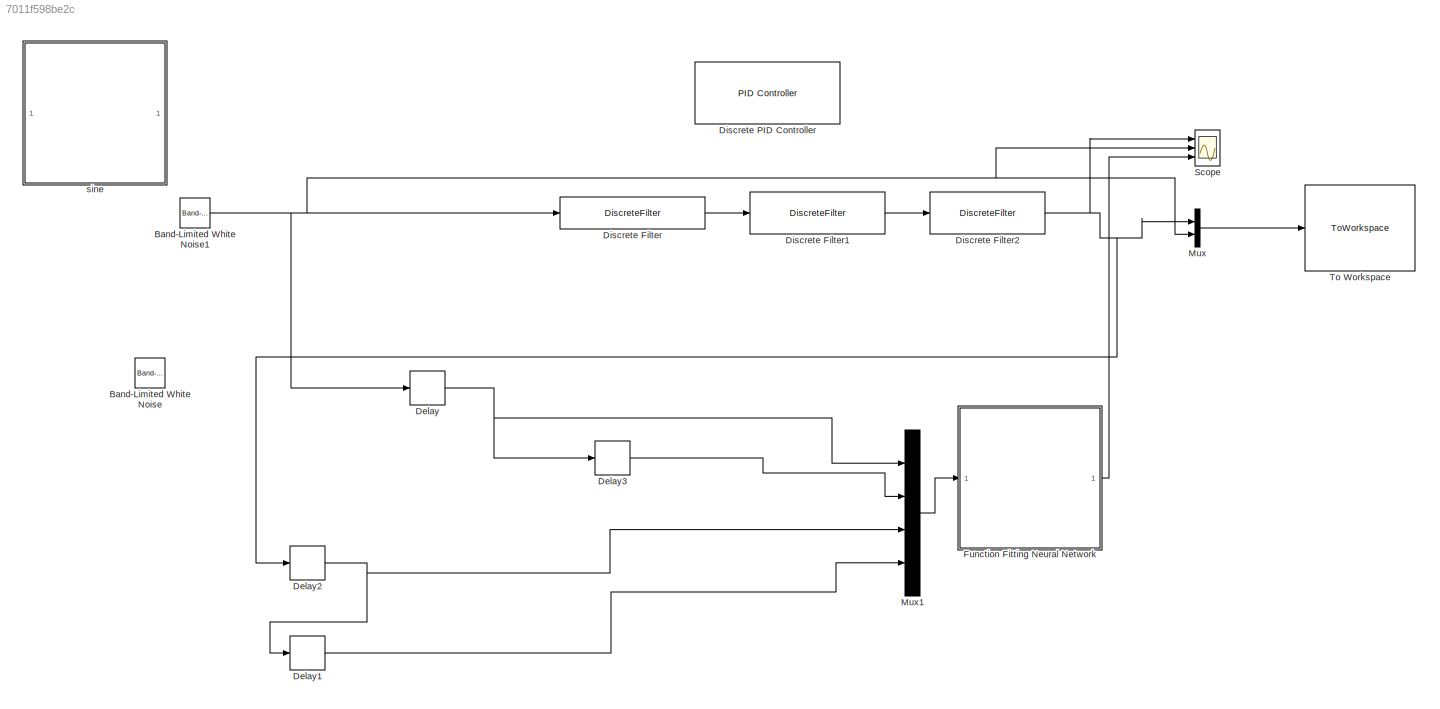
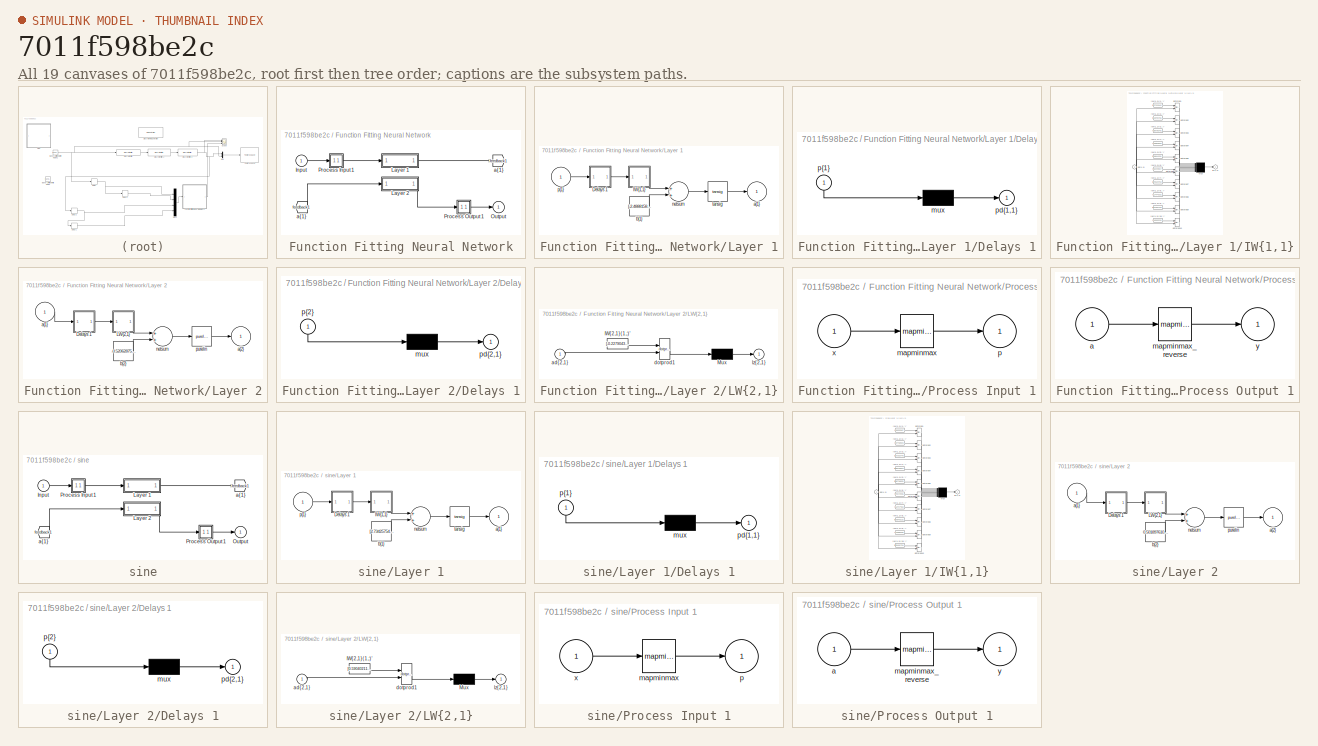
[diagram: thumbnail index - all 19 canvases of the model, root first then tree order]
MODEL slx_7011f598be2c
KIND model
CONFIG AbsTol = auto
CONFIG EnableMultiTasking = off
CONFIG FixedStep = 0.01
CONFIG MaxStep = auto
CONFIG MinStep = auto
CONFIG RelTol = 1e-3
CONFIG SampleTimeConstraint = Unconstrained
CONFIG Solver = FixedStepDiscrete
CONFIG SolverName = FixedStepDiscrete
CONFIG StartTime = 0.0
CONFIG StopTime = 20.0
BLOCK [Reference] Band-Limited White Noise  REF=simulink/Sources/Band-Limited
White Noise
  Ports = [0, 1]
  SourceBlock = simulink/Sources/Band-Limited\nWhite Noise
  SourceType = Band-Limited White Noise.
BLOCK [Reference] Band-Limited White Noise1  REF=simulink/Sources/Band-Limited
White Noise
  Ports = [0, 1]
  SourceBlock = simulink/Sources/Band-Limited\nWhite Noise
  SourceType = Band-Limited White Noise.
BLOCK [Delay] Delay
  DelayLength = 1
  InitialCondition = 0
  InputPortMap = u0
  Ports = [1, 1]
BLOCK [Delay] Delay1
  DelayLength = 1
  InitialCondition = 0
  InputPortMap = u0
  Ports = [1, 1]
BLOCK [Delay] Delay2
  DelayLength = 1
  InitialCondition = 0
  InputPortMap = u0
  Ports = [1, 1]
BLOCK [Delay] Delay3
  DelayLength = 1
  InitialCondition = 0
  InputPortMap = u0
  Ports = [1, 1]
BLOCK [DiscreteFilter] Discrete Filter
  InputPortMap = u0
  Numerator = [0 1]
  Ports = [1, 1]
BLOCK [DiscreteFilter] Discrete Filter1
  Denominator = [1 -0.1]
  InputPortMap = u0
  Ports = [1, 1]
BLOCK [DiscreteFilter] Discrete Filter2
  Denominator = [1 0.00001]
  InputPortMap = u0
  Ports = [1, 1]
BLOCK [Reference] Discrete PID Controller  REF=simulink/Continuous/PID Controller
  Ports = [1, 1]
  SourceBlock = simulink/Continuous/PID Controller
  SourceType = PID 1dof
BLOCK [SubSystem] Function Fitting Neural Network
  Ports = [1, 1]
  RequestExecContextInheritance = off
  Variant = off
BLOCK [From] Function Fitting Neural Network/ a{1} 
  GotoTag = feedback1
BLOCK [Inport] Function Fitting Neural Network/Input
  IconDisplay = Port number
  PortDimensions = 4
BLOCK [SubSystem] Function Fitting Neural Network/Layer 1
  Ports = [1, 1]
  RequestExecContextInheritance = off
  Variant = off
BLOCK [SubSystem] Function Fitting Neural Network/Layer 1/Delays 1
  Ports = [1, 1]
  RequestExecContextInheritance = off
  Variant = off
BLOCK [Mux] Function Fitting Neural Network/Layer 1/Delays 1/mux
  Inputs = 1
  Ports = [1, 1]
BLOCK [Outport] Function Fitting Neural Network/Layer 1/Delays 1/pd{1,1}
  IconDisplay = Port number
BLOCK [Inport] Function Fitting Neural Network/Layer 1/Delays 1/p{1}
  IconDisplay = Port number
  PortDimensions = 4
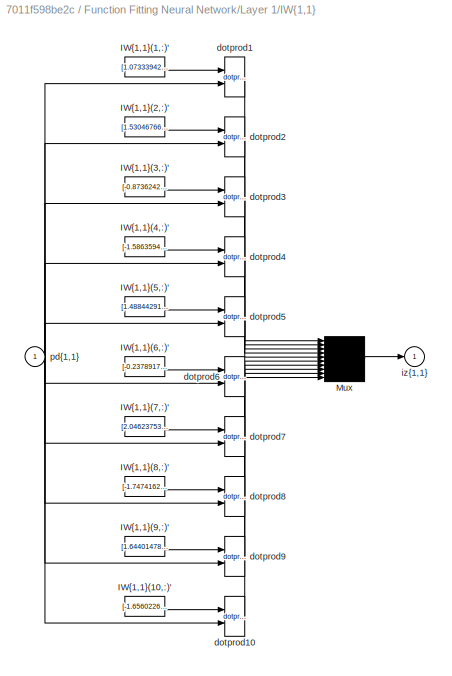
BLOCK [SubSystem] Function Fitting Neural Network/Layer 1/IW{1,1}
  Ports = [1, 1]
  RequestExecContextInheritance = off
  Variant = off
BLOCK [Constant] Function Fitting Neural Network/Layer 1/IW{1,1}/IW{1,1}(1,:)'
  Value = [1.0733394279049522;0.080483204559086807;0.70372800851343353;2.2007595652914427]
BLOCK [Constant] Function Fitting Neural Network/Layer 1/IW{1,1}/IW{1,1}(10,:)'
  Value = [-1.6560226048576614;1.5742817597632952;-0.77707874374613428;0.61791739003595492]
BLOCK [Constant] Function Fitting Neural Network/Layer 1/IW{1,1}/IW{1,1}(2,:)'
  Value = [1.5304676687697931;-0.66165941295258024;-1.4151208355066609;1.212780082020831]
BLOCK [Constant] Function Fitting Neural Network/Layer 1/IW{1,1}/IW{1,1}(3,:)'
  Value = [-0.87362424646233905;-0.89925307556499956;1.6846618781529801;-0.99538022113019031]
BLOCK [Constant] Function Fitting Neural Network/Layer 1/IW{1,1}/IW{1,1}(4,:)'
  Value = [-1.5863594211629433;1.6954275323282726;0.90219839763559917;0.50004688638942929]
BLOCK [Constant] Function Fitting Neural Network/Layer 1/IW{1,1}/IW{1,1}(5,:)'
  Value = [1.488442911367744;0.96294364407009991;-1.1473839841209872;-1.2681447309557685]
BLOCK [Constant] Function Fitting Neural Network/Layer 1/IW{1,1}/IW{1,1}(6,:)'
  Value = [-0.23789174450624553;-1.0689779137943161;-2.025882088108923;0.93624553925018039]
BLOCK [Constant] Function Fitting Neural Network/Layer 1/IW{1,1}/IW{1,1}(7,:)'
  Value = [2.0462375302687561;0.66556541907826106;-1.004463186302553;-0.75391050690540784]
BLOCK [Constant] Function Fitting Neural Network/Layer 1/IW{1,1}/IW{1,1}(8,:)'
  Value = [-1.7474162192988703;-0.93052868639931252;-0.85935805898040951;1.4379681982678678]
BLOCK [Constant] Function Fitting Neural Network/Layer 1/IW{1,1}/IW{1,1}(9,:)'
  Value = [1.6440147804756549;0.66585145069006868;0.25553159333592779;-1.7340871480945605]
BLOCK [Mux] Function Fitting Neural Network/Layer 1/IW{1,1}/Mux
  Inputs = 10
  Ports = [10, 1]
BLOCK [Reference] Function Fitting Neural Network/Layer 1/IW{1,1}/dotprod1  REF=neural/Weight Functions/dotprod
  Ports = [2, 1]
  SourceBlock = neural/Weight Functions/dotprod
  SourceType = DOTPROD
BLOCK [Reference] Function Fitting Neural Network/Layer 1/IW{1,1}/dotprod10  REF=neural/Weight Functions/dotprod
  Ports = [2, 1]
  SourceBlock = neural/Weight Functions/dotprod
  SourceType = DOTPROD
BLOCK [Reference] Function Fitting Neural Network/Layer 1/IW{1,1}/dotprod2  REF=neural/Weight Functions/dotprod
  Ports = [2, 1]
  SourceBlock = neural/Weight Functions/dotprod
  SourceType = DOTPROD
BLOCK [Reference] Function Fitting Neural Network/Layer 1/IW{1,1}/dotprod3  REF=neural/Weight Functions/dotprod
  Ports = [2, 1]
  SourceBlock = neural/Weight Functions/dotprod
  SourceType = DOTPROD
BLOCK [Reference] Function Fitting Neural Network/Layer 1/IW{1,1}/dotprod4  REF=neural/Weight Functions/dotprod
  Ports = [2, 1]
  SourceBlock = neural/Weight Functions/dotprod
  SourceType = DOTPROD
BLOCK [Reference] Function Fitting Neural Network/Layer 1/IW{1,1}/dotprod5  REF=neural/Weight Functions/dotprod
  Ports = [2, 1]
  SourceBlock = neural/Weight Functions/dotprod
  SourceType = DOTPROD
BLOCK [Reference] Function Fitting Neural Network/Layer 1/IW{1,1}/dotprod6  REF=neural/Weight Functions/dotprod
  Ports = [2, 1]
  SourceBlock = neural/Weight Functions/dotprod
  SourceType = DOTPROD
BLOCK [Reference] Function Fitting Neural Network/Layer 1/IW{1,1}/dotprod7  REF=neural/Weight Functions/dotprod
  Ports = [2, 1]
  SourceBlock = neural/Weight Functions/dotprod
  SourceType = DOTPROD
BLOCK [Reference] Function Fitting Neural Network/Layer 1/IW{1,1}/dotprod8  REF=neural/Weight Functions/dotprod
  Ports = [2, 1]
  SourceBlock = neural/Weight Functions/dotprod
  SourceType = DOTPROD
BLOCK [Reference] Function Fitting Neural Network/Layer 1/IW{1,1}/dotprod9  REF=neural/Weight Functions/dotprod
  Ports = [2, 1]
  SourceBlock = neural/Weight Functions/dotprod
  SourceType = DOTPROD
BLOCK [Outport] Function Fitting Neural Network/Layer 1/IW{1,1}/iz{1,1}
  IconDisplay = Port number
BLOCK [Inport] Function Fitting Neural Network/Layer 1/IW{1,1}/pd{1,1}
  IconDisplay = Port number
  PortDimensions = 4
BLOCK [Outport] Function Fitting Neural Network/Layer 1/a{1}
  IconDisplay = Port number
  InitialOutput = [0;0;0;0;0;0;0;0;0;0]
BLOCK [Constant] Function Fitting Neural Network/Layer 1/b{1}
  Value = [-2.4888158960028508;-1.9154067560485493;1.3495312144325204;0.71463140624823618;-0.49125605602403077;-0.37868338325905737;0.82478329385424887;-1.2318447901144673;1.9229658357828865;-2.4782288721971226]
BLOCK [Sum] Function Fitting Neural Network/Layer 1/netsum
  Inputs = 2
  Ports = [2, 1]
BLOCK [Inport] Function Fitting Neural Network/Layer 1/p{1}
  IconDisplay = Port number
  PortDimensions = 4
BLOCK [Reference] Function Fitting Neural Network/Layer 1/tansig  REF=neural/Transfer Functions/tansig
  Ports = [1, 1]
  SourceBlock = neural/Transfer Functions/tansig
  SourceType = TANSIG
BLOCK [SubSystem] Function Fitting Neural Network/Layer 2
  Ports = [1, 1]
  RequestExecContextInheritance = off
  Variant = off
BLOCK [SubSystem] Function Fitting Neural Network/Layer 2/Delays 1
  Ports = [1, 1]
  RequestExecContextInheritance = off
  Variant = off
BLOCK [Mux] Function Fitting Neural Network/Layer 2/Delays 1/mux
  Inputs = 1
  Ports = [1, 1]
BLOCK [Outport] Function Fitting Neural Network/Layer 2/Delays 1/pd{2,1}
  IconDisplay = Port number
BLOCK [Inport] Function Fitting Neural Network/Layer 2/Delays 1/p{2}
  IconDisplay = Port number
  PortDimensions = 10
BLOCK [SubSystem] Function Fitting Neural Network/Layer 2/LW{2,1}
  Ports = [1, 1]
  RequestExecContextInheritance = off
  Variant = off
BLOCK [Constant] Function Fitting Neural Network/Layer 2/LW{2,1}/IW{2,1}(1,:)'
  Value = [-0.22790435773785009;0.033217494865633371;-0.46699797290102768;0.44561839527465219;0.62445625558973439;0.63800234974212866;-0.0068861296847932641;-0.62472545283176062;-0.081327613051739009;-0.27389660419790118]
BLOCK [Mux] Function Fitting Neural Network/Layer 2/LW{2,1}/Mux
  Inputs = 1
  Ports = [1, 1]
BLOCK [Inport] Function Fitting Neural Network/Layer 2/LW{2,1}/ad{2,1}
  IconDisplay = Port number
  PortDimensions = 10
BLOCK [Reference] Function Fitting Neural Network/Layer 2/LW{2,1}/dotprod1  REF=neural/Weight Functions/dotprod
  Ports = [2, 1]
  SourceBlock = neural/Weight Functions/dotprod
  SourceType = DOTPROD
BLOCK [Outport] Function Fitting Neural Network/Layer 2/LW{2,1}/lz{2,1}
  IconDisplay = Port number
BLOCK [Inport] Function Fitting Neural Network/Layer 2/a{1} 
  IconDisplay = Port number
  PortDimensions = 10
BLOCK [Outport] Function Fitting Neural Network/Layer 2/a{2}
  IconDisplay = Port number
  InitialOutput = 0
BLOCK [Constant] Function Fitting Neural Network/Layer 2/b{2}
  Value = -0.52062875370333961
BLOCK [Sum] Function Fitting Neural Network/Layer 2/netsum
  Inputs = 2
  Ports = [2, 1]
BLOCK [Reference] Function Fitting Neural Network/Layer 2/purelin  REF=neural/Transfer Functions/purelin
  Ports = [1, 1]
  SourceBlock = neural/Transfer Functions/purelin
  SourceType = PURELIN
BLOCK [Outport] Function Fitting Neural Network/Output
  IconDisplay = Port number
  InitialOutput = 0
BLOCK [SubSystem] Function Fitting Neural Network/Process Input 1
  Ports = [1, 1]
  RequestExecContextInheritance = off
  Variant = off
BLOCK [Reference] Function Fitting Neural Network/Process Input 1/mapminmax  REF=neural/Processing Functions/mapminmax
  Ports = [1, 1]
  SourceBlock = neural/Processing Functions/mapminmax
  SourceType = MAPMINMAX Preprocess
BLOCK [Outport] Function Fitting Neural Network/Process Input 1/p
  IconDisplay = Port number
  PortDimensions = 4
BLOCK [Inport] Function Fitting Neural Network/Process Input 1/x
  IconDisplay = Port number
  PortDimensions = 4
BLOCK [SubSystem] Function Fitting Neural Network/Process Output 1
  Ports = [1, 1]
  RequestExecContextInheritance = off
  Variant = off
BLOCK [Inport] Function Fitting Neural Network/Process Output 1/a
  IconDisplay = Port number
  PortDimensions = 1
BLOCK [Reference] Function Fitting Neural Network/Process Output 1/mapminmax_reverse  REF=neural/Processing Functions/mapminmax_reverse
  Ports = [1, 1]
  SourceBlock = neural/Processing Functions/mapminmax_reverse
  SourceType = MAPMINMAX Reverse Process
BLOCK [Outport] Function Fitting Neural Network/Process Output 1/y
  IconDisplay = Port number
  PortDimensions = 1
BLOCK [Goto] Function Fitting Neural Network/a{1}
  GotoTag = feedback1
BLOCK [Mux] Mux
  DisplayOption = bar
  Inputs = 2
  Ports = [2, 1]
BLOCK [Mux] Mux1
  DisplayOption = bar
  Ports = [4, 1]
BLOCK [Scope] Scope
  NumInputPorts = 3
  Ports = [3]
  ScopeSpecificationString = Simulink.scopes.TimeScopeBlockCfg('CurrentConfiguration', extmgr.ConfigurationSet(extmgr.Configuration('Core','General UI',true),extmgr.Configuration('Core','Source UI',true),extmgr.Configuration('Sources','WiredSimulink',true),extmgr.Configuration('Visuals','Time Domain',true,'SerializedDisplays',{struct('MinYLimReal','-0.12502','MaxYLimReal','1.125','YLabelReal','','MinYLimMag','0.00000','MaxYLi...<+1442ch>
BLOCK [ToWorkspace] To Workspace
  FixptAsFi = on
  MaxDataPoints = inf
  Ports = [1]
  SampleTime = -1
  Save2DSignal = 3-D array (concatenate along third dimension)
  SaveFormat = Timeseries
  VariableName = simout
BLOCK [SubSystem] sine
  Ports = [1, 1]
  RequestExecContextInheritance = off
  Variant = off
BLOCK [From] sine/ a{1} 
  GotoTag = feedback1
BLOCK [Inport] sine/Input
  IconDisplay = Port number
  PortDimensions = 4
BLOCK [SubSystem] sine/Layer 1
  Ports = [1, 1]
  RequestExecContextInheritance = off
  Variant = off
BLOCK [SubSystem] sine/Layer 1/Delays 1
  Ports = [1, 1]
  RequestExecContextInheritance = off
  Variant = off
BLOCK [Mux] sine/Layer 1/Delays 1/mux
  Inputs = 1
  Ports = [1, 1]
BLOCK [Outport] sine/Layer 1/Delays 1/pd{1,1}
  IconDisplay = Port number
BLOCK [Inport] sine/Layer 1/Delays 1/p{1}
  IconDisplay = Port number
  PortDimensions = 4
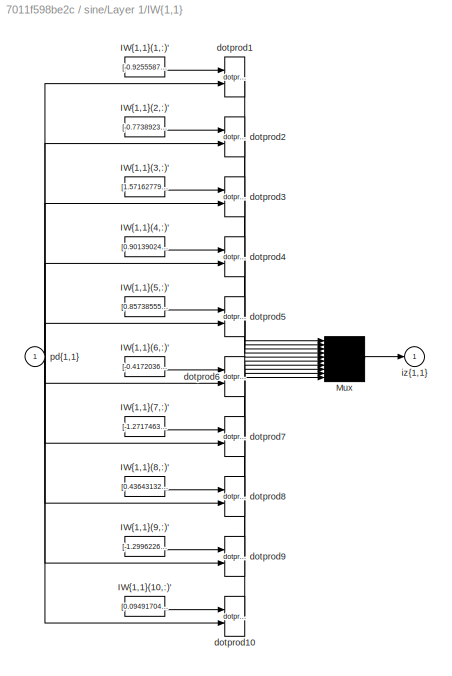
BLOCK [SubSystem] sine/Layer 1/IW{1,1}
  Ports = [1, 1]
  RequestExecContextInheritance = off
  Variant = off
BLOCK [Constant] sine/Layer 1/IW{1,1}/IW{1,1}(1,:)'
  Value = [-0.92555877796203068;1.2591955642911887;-1.4206408491782627;0.64244570417309599]
BLOCK [Constant] sine/Layer 1/IW{1,1}/IW{1,1}(10,:)'
  Value = [0.094917044915356519;-1.743303939335529;0.36657761054354943;-1.7969767271125581]
BLOCK [Constant] sine/Layer 1/IW{1,1}/IW{1,1}(2,:)'
  Value = [-0.77389237212291939;0.3876799958566654;1.9460540208069979;0.69614346212261824]
BLOCK [Constant] sine/Layer 1/IW{1,1}/IW{1,1}(3,:)'
  Value = [1.5716277990051724;-0.1480050491864365;-1.6017320932204655;0.68262701661838632]
BLOCK [Constant] sine/Layer 1/IW{1,1}/IW{1,1}(4,:)'
  Value = [0.90139024435053183;-0.15866954916964282;-2.1688575377950059;0.012226068432835569]
BLOCK [Constant] sine/Layer 1/IW{1,1}/IW{1,1}(5,:)'
  Value = [0.85738555032402664;-1.1262541429520094;0.89955555679405985;-1.5497658554242095]
BLOCK [Constant] sine/Layer 1/IW{1,1}/IW{1,1}(6,:)'
  Value = [-0.41720365078627802;-0.0035162916777713854;-1.6936554383740667;1.4298931332135136]
BLOCK [Constant] sine/Layer 1/IW{1,1}/IW{1,1}(7,:)'
  Value = [-1.2717463446100199;-1.3731142206884754;1.2613522357612257;-0.7835385736588979]
BLOCK [Constant] sine/Layer 1/IW{1,1}/IW{1,1}(8,:)'
  Value = [0.43643132813578284;0.50858361564501131;-2.2821162466922309;0.73169570172439891]
BLOCK [Constant] sine/Layer 1/IW{1,1}/IW{1,1}(9,:)'
  Value = [-1.2996226832565601;1.3809745831668609;-0.90014742368613077;0.97661170506052897]
BLOCK [Mux] sine/Layer 1/IW{1,1}/Mux
  Inputs = 10
  Ports = [10, 1]
BLOCK [Reference] sine/Layer 1/IW{1,1}/dotprod1  REF=neural/Weight Functions/dotprod
  Ports = [2, 1]
  SourceBlock = neural/Weight Functions/dotprod
  SourceType = DOTPROD
BLOCK [Reference] sine/Layer 1/IW{1,1}/dotprod10  REF=neural/Weight Functions/dotprod
  Ports = [2, 1]
  SourceBlock = neural/Weight Functions/dotprod
  SourceType = DOTPROD
BLOCK [Reference] sine/Layer 1/IW{1,1}/dotprod2  REF=neural/Weight Functions/dotprod
  Ports = [2, 1]
  SourceBlock = neural/Weight Functions/dotprod
  SourceType = DOTPROD
BLOCK [Reference] sine/Layer 1/IW{1,1}/dotprod3  REF=neural/Weight Functions/dotprod
  Ports = [2, 1]
  SourceBlock = neural/Weight Functions/dotprod
  SourceType = DOTPROD
BLOCK [Reference] sine/Layer 1/IW{1,1}/dotprod4  REF=neural/Weight Functions/dotprod
  Ports = [2, 1]
  SourceBlock = neural/Weight Functions/dotprod
  SourceType = DOTPROD
BLOCK [Reference] sine/Layer 1/IW{1,1}/dotprod5  REF=neural/Weight Functions/dotprod
  Ports = [2, 1]
  SourceBlock = neural/Weight Functions/dotprod
  SourceType = DOTPROD
BLOCK [Reference] sine/Layer 1/IW{1,1}/dotprod6  REF=neural/Weight Functions/dotprod
  Ports = [2, 1]
  SourceBlock = neural/Weight Functions/dotprod
  SourceType = DOTPROD
BLOCK [Reference] sine/Layer 1/IW{1,1}/dotprod7  REF=neural/Weight Functions/dotprod
  Ports = [2, 1]
  SourceBlock = neural/Weight Functions/dotprod
  SourceType = DOTPROD
BLOCK [Reference] sine/Layer 1/IW{1,1}/dotprod8  REF=neural/Weight Functions/dotprod
  Ports = [2, 1]
  SourceBlock = neural/Weight Functions/dotprod
  SourceType = DOTPROD
BLOCK [Reference] sine/Layer 1/IW{1,1}/dotprod9  REF=neural/Weight Functions/dotprod
  Ports = [2, 1]
  SourceBlock = neural/Weight Functions/dotprod
  SourceType = DOTPROD
BLOCK [Outport] sine/Layer 1/IW{1,1}/iz{1,1}
  IconDisplay = Port number
BLOCK [Inport] sine/Layer 1/IW{1,1}/pd{1,1}
  IconDisplay = Port number
  PortDimensions = 4
BLOCK [Outport] sine/Layer 1/a{1}
  IconDisplay = Port number
  InitialOutput = [0;0;0;0;0;0;0;0;0;0]
BLOCK [Constant] sine/Layer 1/b{1}
  Value = [2.7342575446728348;2.0213489200155088;-0.7755357101585415;-0.57859684071428763;-0.6169287061060994;-0.58478797419731743;-0.58853316786790466;1.4081646548276281;-2.1344725018050585;2.3544791698992058]
BLOCK [Sum] sine/Layer 1/netsum
  Inputs = 2
  Ports = [2, 1]
BLOCK [Inport] sine/Layer 1/p{1}
  IconDisplay = Port number
  PortDimensions = 4
BLOCK [Reference] sine/Layer 1/tansig  REF=neural/Transfer Functions/tansig
  Ports = [1, 1]
  SourceBlock = neural/Transfer Functions/tansig
  SourceType = TANSIG
BLOCK [SubSystem] sine/Layer 2
  Ports = [1, 1]
  RequestExecContextInheritance = off
  Variant = off
BLOCK [SubSystem] sine/Layer 2/Delays 1
  Ports = [1, 1]
  RequestExecContextInheritance = off
  Variant = off
BLOCK [Mux] sine/Layer 2/Delays 1/mux
  Inputs = 1
  Ports = [1, 1]
BLOCK [Outport] sine/Layer 2/Delays 1/pd{2,1}
  IconDisplay = Port number
BLOCK [Inport] sine/Layer 2/Delays 1/p{2}
  IconDisplay = Port number
  PortDimensions = 10
BLOCK [SubSystem] sine/Layer 2/LW{2,1}
  Ports = [1, 1]
  RequestExecContextInheritance = off
  Variant = off
BLOCK [Constant] sine/Layer 2/LW{2,1}/IW{2,1}(1,:)'
  Value = [0.5904021109951535;-0.043979407767605318;1.3040322158437856;0.26961898448659471;-0.48425915308012007;-1.0132622296367995;-0.021109842351971421;-0.45848587674779184;0.47187835709185111;-0.00079895893400050758]
BLOCK [Mux] sine/Layer 2/LW{2,1}/Mux
  Inputs = 1
  Ports = [1, 1]
BLOCK [Inport] sine/Layer 2/LW{2,1}/ad{2,1}
  IconDisplay = Port number
  PortDimensions = 10
BLOCK [Reference] sine/Layer 2/LW{2,1}/dotprod1  REF=neural/Weight Functions/dotprod
  Ports = [2, 1]
  SourceBlock = neural/Weight Functions/dotprod
  SourceType = DOTPROD
BLOCK [Outport] sine/Layer 2/LW{2,1}/lz{2,1}
  IconDisplay = Port number
BLOCK [Inport] sine/Layer 2/a{1} 
  IconDisplay = Port number
  PortDimensions = 10
BLOCK [Outport] sine/Layer 2/a{2}
  IconDisplay = Port number
  InitialOutput = 0
BLOCK [Constant] sine/Layer 2/b{2}
  Value = 0.50189761034947555
BLOCK [Sum] sine/Layer 2/netsum
  Inputs = 2
  Ports = [2, 1]
BLOCK [Reference] sine/Layer 2/purelin  REF=neural/Transfer Functions/purelin
  Ports = [1, 1]
  SourceBlock = neural/Transfer Functions/purelin
  SourceType = PURELIN
BLOCK [Outport] sine/Output
  IconDisplay = Port number
  InitialOutput = 0
BLOCK [SubSystem] sine/Process Input 1
  Ports = [1, 1]
  RequestExecContextInheritance = off
  Variant = off
BLOCK [Reference] sine/Process Input 1/mapminmax  REF=neural/Processing Functions/mapminmax
  Ports = [1, 1]
  SourceBlock = neural/Processing Functions/mapminmax
  SourceType = MAPMINMAX Preprocess
BLOCK [Outport] sine/Process Input 1/p
  IconDisplay = Port number
  PortDimensions = 4
BLOCK [Inport] sine/Process Input 1/x
  IconDisplay = Port number
  PortDimensions = 4
BLOCK [SubSystem] sine/Process Output 1
  Ports = [1, 1]
  RequestExecContextInheritance = off
  Variant = off
BLOCK [Inport] sine/Process Output 1/a
  IconDisplay = Port number
  PortDimensions = 1
BLOCK [Reference] sine/Process Output 1/mapminmax_reverse  REF=neural/Processing Functions/mapminmax_reverse
  Ports = [1, 1]
  SourceBlock = neural/Processing Functions/mapminmax_reverse
  SourceType = MAPMINMAX Reverse Process
BLOCK [Outport] sine/Process Output 1/y
  IconDisplay = Port number
  PortDimensions = 1
BLOCK [Goto] sine/a{1}
  GotoTag = feedback1
NET Band-Limited White Noise1:1 -> Delay:1, Discrete Filter:1, Mux:2, Scope:2
LINE Delay1:1 -> Mux1:4
NET Delay2:1 -> Delay1:1, Mux1:3
LINE Delay3:1 -> Mux1:2
NET Delay:1 -> Delay3:1, Mux1:1
LINE Discrete Filter1:1 -> Discrete Filter2:1
NET Discrete Filter2:1 -> Delay2:1, Mux:1, Scope:1
LINE Discrete Filter:1 -> Discrete Filter1:1
LINE Function Fitting Neural Network/ a{1} :1 -> Function Fitting Neural Network/Layer 2:1
LINE Function Fitting Neural Network/Input:1 -> Function Fitting Neural Network/Process Input 1:1
LINE Function Fitting Neural Network/Layer 1/Delays 1/mux:1 -> Function Fitting Neural Network/Layer 1/Delays 1/pd{1,1}:1
LINE Function Fitting Neural Network/Layer 1/Delays 1/p{1}:1 -> Function Fitting Neural Network/Layer 1/Delays 1/mux:1
LINE Function Fitting Neural Network/Layer 1/Delays 1:1 -> Function Fitting Neural Network/Layer 1/IW{1,1}:1
LINE Function Fitting Neural Network/Layer 1/IW{1,1}/IW{1,1}(1,:)':1 -> Function Fitting Neural Network/Layer 1/IW{1,1}/dotprod1:1
LINE Function Fitting Neural Network/Layer 1/IW{1,1}/IW{1,1}(10,:)':1 -> Function Fitting Neural Network/Layer 1/IW{1,1}/dotprod10:1
LINE Function Fitting Neural Network/Layer 1/IW{1,1}/IW{1,1}(2,:)':1 -> Function Fitting Neural Network/Layer 1/IW{1,1}/dotprod2:1
LINE Function Fitting Neural Network/Layer 1/IW{1,1}/IW{1,1}(3,:)':1 -> Function Fitting Neural Network/Layer 1/IW{1,1}/dotprod3:1
LINE Function Fitting Neural Network/Layer 1/IW{1,1}/IW{1,1}(4,:)':1 -> Function Fitting Neural Network/Layer 1/IW{1,1}/dotprod4:1
LINE Function Fitting Neural Network/Layer 1/IW{1,1}/IW{1,1}(5,:)':1 -> Function Fitting Neural Network/Layer 1/IW{1,1}/dotprod5:1
LINE Function Fitting Neural Network/Layer 1/IW{1,1}/IW{1,1}(6,:)':1 -> Function Fitting Neural Network/Layer 1/IW{1,1}/dotprod6:1
LINE Function Fitting Neural Network/Layer 1/IW{1,1}/IW{1,1}(7,:)':1 -> Function Fitting Neural Network/Layer 1/IW{1,1}/dotprod7:1
LINE Function Fitting Neural Network/Layer 1/IW{1,1}/IW{1,1}(8,:)':1 -> Function Fitting Neural Network/Layer 1/IW{1,1}/dotprod8:1
LINE Function Fitting Neural Network/Layer 1/IW{1,1}/IW{1,1}(9,:)':1 -> Function Fitting Neural Network/Layer 1/IW{1,1}/dotprod9:1
LINE Function Fitting Neural Network/Layer 1/IW{1,1}/Mux:1 -> Function Fitting Neural Network/Layer 1/IW{1,1}/iz{1,1}:1
LINE Function Fitting Neural Network/Layer 1/IW{1,1}/dotprod10:1 -> Function Fitting Neural Network/Layer 1/IW{1,1}/Mux:10
LINE Function Fitting Neural Network/Layer 1/IW{1,1}/dotprod1:1 -> Function Fitting Neural Network/Layer 1/IW{1,1}/Mux:1
LINE Function Fitting Neural Network/Layer 1/IW{1,1}/dotprod2:1 -> Function Fitting Neural Network/Layer 1/IW{1,1}/Mux:2
LINE Function Fitting Neural Network/Layer 1/IW{1,1}/dotprod3:1 -> Function Fitting Neural Network/Layer 1/IW{1,1}/Mux:3
LINE Function Fitting Neural Network/Layer 1/IW{1,1}/dotprod4:1 -> Function Fitting Neural Network/Layer 1/IW{1,1}/Mux:4
LINE Function Fitting Neural Network/Layer 1/IW{1,1}/dotprod5:1 -> Function Fitting Neural Network/Layer 1/IW{1,1}/Mux:5
LINE Function Fitting Neural Network/Layer 1/IW{1,1}/dotprod6:1 -> Function Fitting Neural Network/Layer 1/IW{1,1}/Mux:6
LINE Function Fitting Neural Network/Layer 1/IW{1,1}/dotprod7:1 -> Function Fitting Neural Network/Layer 1/IW{1,1}/Mux:7
LINE Function Fitting Neural Network/Layer 1/IW{1,1}/dotprod8:1 -> Function Fitting Neural Network/Layer 1/IW{1,1}/Mux:8
LINE Function Fitting Neural Network/Layer 1/IW{1,1}/dotprod9:1 -> Function Fitting Neural Network/Layer 1/IW{1,1}/Mux:9
NET Function Fitting Neural Network/Layer 1/IW{1,1}/pd{1,1}:1 -> Function Fitting Neural Network/Layer 1/IW{1,1}/dotprod10:2, Function Fitting Neural Network/Layer 1/IW{1,1}/dotprod1:2, Function Fitting Neural Network/Layer 1/IW{1,1}/dotprod2:2, Function Fitting Neural Network/Layer 1/IW{1,1}/dotprod3:2, Function Fitting Neural Network/Layer 1/IW{1,1}/dotprod4:2, Function Fitting Neural Network/Layer 1/IW{1,1}/dotprod5:2, Function Fitting Neural Network/Layer 1/IW{1,1}/dotprod6:2, Function Fitting Neural Network/Layer 1/IW{1,1}/dotprod7:2, Function Fitting Neural Network/Layer 1/IW{1,1}/dotprod8:2, Function Fitting Neural Network/Layer 1/IW{1,1}/dotprod9:2
LINE Function Fitting Neural Network/Layer 1/IW{1,1}:1 -> Function Fitting Neural Network/Layer 1/netsum:1
LINE Function Fitting Neural Network/Layer 1/b{1}:1 -> Function Fitting Neural Network/Layer 1/netsum:2
LINE Function Fitting Neural Network/Layer 1/netsum:1 -> Function Fitting Neural Network/Layer 1/tansig:1
LINE Function Fitting Neural Network/Layer 1/p{1}:1 -> Function Fitting Neural Network/Layer 1/Delays 1:1
LINE Function Fitting Neural Network/Layer 1/tansig:1 -> Function Fitting Neural Network/Layer 1/a{1}:1
LINE Function Fitting Neural Network/Layer 1:1 -> Function Fitting Neural Network/a{1}:1
LINE Function Fitting Neural Network/Layer 2/Delays 1/mux:1 -> Function Fitting Neural Network/Layer 2/Delays 1/pd{2,1}:1
LINE Function Fitting Neural Network/Layer 2/Delays 1/p{2}:1 -> Function Fitting Neural Network/Layer 2/Delays 1/mux:1
LINE Function Fitting Neural Network/Layer 2/Delays 1:1 -> Function Fitting Neural Network/Layer 2/LW{2,1}:1
LINE Function Fitting Neural Network/Layer 2/LW{2,1}/IW{2,1}(1,:)':1 -> Function Fitting Neural Network/Layer 2/LW{2,1}/dotprod1:1
LINE Function Fitting Neural Network/Layer 2/LW{2,1}/Mux:1 -> Function Fitting Neural Network/Layer 2/LW{2,1}/lz{2,1}:1
LINE Function Fitting Neural Network/Layer 2/LW{2,1}/ad{2,1}:1 -> Function Fitting Neural Network/Layer 2/LW{2,1}/dotprod1:2
LINE Function Fitting Neural Network/Layer 2/LW{2,1}/dotprod1:1 -> Function Fitting Neural Network/Layer 2/LW{2,1}/Mux:1
LINE Function Fitting Neural Network/Layer 2/LW{2,1}:1 -> Function Fitting Neural Network/Layer 2/netsum:1
LINE Function Fitting Neural Network/Layer 2/a{1} :1 -> Function Fitting Neural Network/Layer 2/Delays 1:1
LINE Function Fitting Neural Network/Layer 2/b{2}:1 -> Function Fitting Neural Network/Layer 2/netsum:2
LINE Function Fitting Neural Network/Layer 2/netsum:1 -> Function Fitting Neural Network/Layer 2/purelin:1
LINE Function Fitting Neural Network/Layer 2/purelin:1 -> Function Fitting Neural Network/Layer 2/a{2}:1
LINE Function Fitting Neural Network/Layer 2:1 -> Function Fitting Neural Network/Process Output 1:1
LINE Function Fitting Neural Network/Process Input 1/mapminmax:1 -> Function Fitting Neural Network/Process Input 1/p:1
LINE Function Fitting Neural Network/Process Input 1/x:1 -> Function Fitting Neural Network/Process Input 1/mapminmax:1
LINE Function Fitting Neural Network/Process Input 1:1 -> Function Fitting Neural Network/Layer 1:1
LINE Function Fitting Neural Network/Process Output 1/a:1 -> Function Fitting Neural Network/Process Output 1/mapminmax_reverse:1
LINE Function Fitting Neural Network/Process Output 1/mapminmax_reverse:1 -> Function Fitting Neural Network/Process Output 1/y:1
LINE Function Fitting Neural Network/Process Output 1:1 -> Function Fitting Neural Network/Output:1
LINE Function Fitting Neural Network:1 -> Scope:3
LINE Mux1:1 -> Function Fitting Neural Network:1
LINE Mux:1 -> To Workspace:1
LINE sine/ a{1} :1 -> sine/Layer 2:1
LINE sine/Input:1 -> sine/Process Input 1:1
LINE sine/Layer 1/Delays 1/mux:1 -> sine/Layer 1/Delays 1/pd{1,1}:1
LINE sine/Layer 1/Delays 1/p{1}:1 -> sine/Layer 1/Delays 1/mux:1
LINE sine/Layer 1/Delays 1:1 -> sine/Layer 1/IW{1,1}:1
LINE sine/Layer 1/IW{1,1}/IW{1,1}(1,:)':1 -> sine/Layer 1/IW{1,1}/dotprod1:1
LINE sine/Layer 1/IW{1,1}/IW{1,1}(10,:)':1 -> sine/Layer 1/IW{1,1}/dotprod10:1
LINE sine/Layer 1/IW{1,1}/IW{1,1}(2,:)':1 -> sine/Layer 1/IW{1,1}/dotprod2:1
LINE sine/Layer 1/IW{1,1}/IW{1,1}(3,:)':1 -> sine/Layer 1/IW{1,1}/dotprod3:1
LINE sine/Layer 1/IW{1,1}/IW{1,1}(4,:)':1 -> sine/Layer 1/IW{1,1}/dotprod4:1
LINE sine/Layer 1/IW{1,1}/IW{1,1}(5,:)':1 -> sine/Layer 1/IW{1,1}/dotprod5:1
LINE sine/Layer 1/IW{1,1}/IW{1,1}(6,:)':1 -> sine/Layer 1/IW{1,1}/dotprod6:1
LINE sine/Layer 1/IW{1,1}/IW{1,1}(7,:)':1 -> sine/Layer 1/IW{1,1}/dotprod7:1
LINE sine/Layer 1/IW{1,1}/IW{1,1}(8,:)':1 -> sine/Layer 1/IW{1,1}/dotprod8:1
LINE sine/Layer 1/IW{1,1}/IW{1,1}(9,:)':1 -> sine/Layer 1/IW{1,1}/dotprod9:1
LINE sine/Layer 1/IW{1,1}/Mux:1 -> sine/Layer 1/IW{1,1}/iz{1,1}:1
LINE sine/Layer 1/IW{1,1}/dotprod10:1 -> sine/Layer 1/IW{1,1}/Mux:10
LINE sine/Layer 1/IW{1,1}/dotprod1:1 -> sine/Layer 1/IW{1,1}/Mux:1
LINE sine/Layer 1/IW{1,1}/dotprod2:1 -> sine/Layer 1/IW{1,1}/Mux:2
LINE sine/Layer 1/IW{1,1}/dotprod3:1 -> sine/Layer 1/IW{1,1}/Mux:3
LINE sine/Layer 1/IW{1,1}/dotprod4:1 -> sine/Layer 1/IW{1,1}/Mux:4
LINE sine/Layer 1/IW{1,1}/dotprod5:1 -> sine/Layer 1/IW{1,1}/Mux:5
LINE sine/Layer 1/IW{1,1}/dotprod6:1 -> sine/Layer 1/IW{1,1}/Mux:6
LINE sine/Layer 1/IW{1,1}/dotprod7:1 -> sine/Layer 1/IW{1,1}/Mux:7
LINE sine/Layer 1/IW{1,1}/dotprod8:1 -> sine/Layer 1/IW{1,1}/Mux:8
LINE sine/Layer 1/IW{1,1}/dotprod9:1 -> sine/Layer 1/IW{1,1}/Mux:9
NET sine/Layer 1/IW{1,1}/pd{1,1}:1 -> sine/Layer 1/IW{1,1}/dotprod10:2, sine/Layer 1/IW{1,1}/dotprod1:2, sine/Layer 1/IW{1,1}/dotprod2:2, sine/Layer 1/IW{1,1}/dotprod3:2, sine/Layer 1/IW{1,1}/dotprod4:2, sine/Layer 1/IW{1,1}/dotprod5:2, sine/Layer 1/IW{1,1}/dotprod6:2, sine/Layer 1/IW{1,1}/dotprod7:2, sine/Layer 1/IW{1,1}/dotprod8:2, sine/Layer 1/IW{1,1}/dotprod9:2
LINE sine/Layer 1/IW{1,1}:1 -> sine/Layer 1/netsum:1
LINE sine/Layer 1/b{1}:1 -> sine/Layer 1/netsum:2
LINE sine/Layer 1/netsum:1 -> sine/Layer 1/tansig:1
LINE sine/Layer 1/p{1}:1 -> sine/Layer 1/Delays 1:1
LINE sine/Layer 1/tansig:1 -> sine/Layer 1/a{1}:1
LINE sine/Layer 1:1 -> sine/a{1}:1
LINE sine/Layer 2/Delays 1/mux:1 -> sine/Layer 2/Delays 1/pd{2,1}:1
LINE sine/Layer 2/Delays 1/p{2}:1 -> sine/Layer 2/Delays 1/mux:1
LINE sine/Layer 2/Delays 1:1 -> sine/Layer 2/LW{2,1}:1
LINE sine/Layer 2/LW{2,1}/IW{2,1}(1,:)':1 -> sine/Layer 2/LW{2,1}/dotprod1:1
LINE sine/Layer 2/LW{2,1}/Mux:1 -> sine/Layer 2/LW{2,1}/lz{2,1}:1
LINE sine/Layer 2/LW{2,1}/ad{2,1}:1 -> sine/Layer 2/LW{2,1}/dotprod1:2
LINE sine/Layer 2/LW{2,1}/dotprod1:1 -> sine/Layer 2/LW{2,1}/Mux:1
LINE sine/Layer 2/LW{2,1}:1 -> sine/Layer 2/netsum:1
LINE sine/Layer 2/a{1} :1 -> sine/Layer 2/Delays 1:1
LINE sine/Layer 2/b{2}:1 -> sine/Layer 2/netsum:2
LINE sine/Layer 2/netsum:1 -> sine/Layer 2/purelin:1
LINE sine/Layer 2/purelin:1 -> sine/Layer 2/a{2}:1
LINE sine/Layer 2:1 -> sine/Process Output 1:1
LINE sine/Process Input 1/mapminmax:1 -> sine/Process Input 1/p:1
LINE sine/Process Input 1/x:1 -> sine/Process Input 1/mapminmax:1
LINE sine/Process Input 1:1 -> sine/Layer 1:1
LINE sine/Process Output 1/a:1 -> sine/Process Output 1/mapminmax_reverse:1
LINE sine/Process Output 1/mapminmax_reverse:1 -> sine/Process Output 1/y:1
LINE sine/Process Output 1:1 -> sine/Output:1
note: NET lines group one-source signal fan-out (src -> all destinations, sorted); 1:1 wires keep LINE
